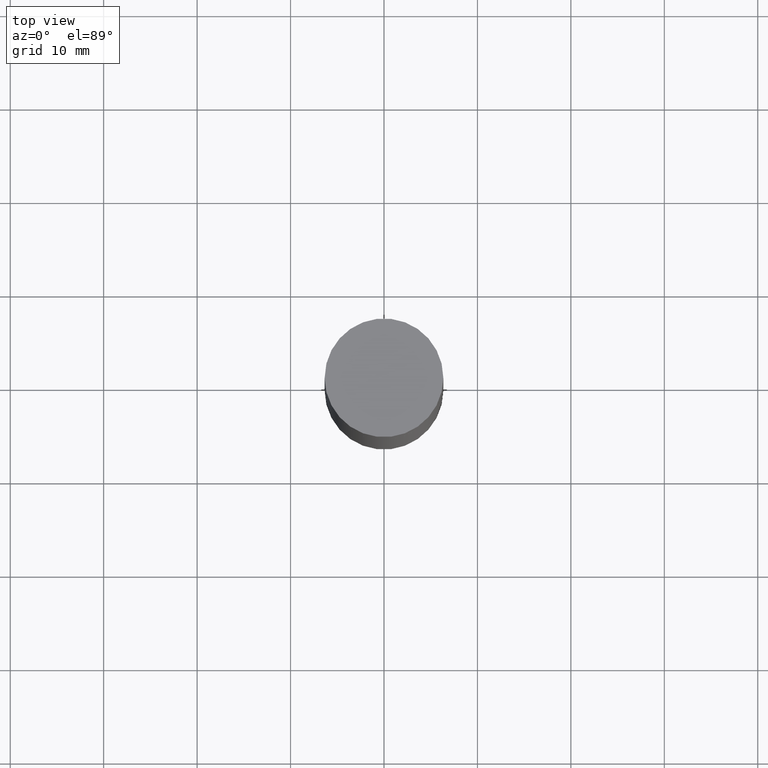
[diagram: clean part render]
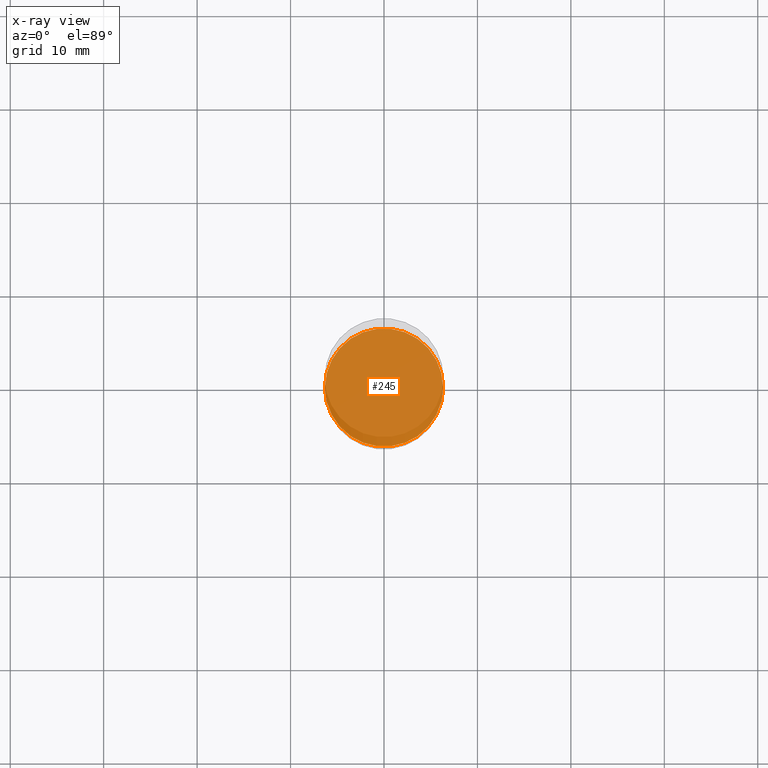
[diagram: x-ray — body ghosted, one internal face saturated and labeled with its STEP entity id]
A machine part, top view, then the same camera in x-ray: the body is ghosted and one INTERNAL B-rep face — a face not visible from any outside direction — is saturated and labeled: STEP entity #245.
In plain terms, the highlighted planar face has unit normal (-0, 0, 1).
Its self-contained STEP definition (entity closure, byte-faithful):
#13 = VERTEX_POINT ( 'NONE', #672 ) ;
#27 = EDGE_CURVE ( 'NONE', #13, #433, #212, .T. ) ;
#39 = DIRECTION ( 'NONE',  ( -2.445468806185136597E-29, 3.491481338843145583E-15, 1.000000000000000000 ) ) ;
#46 = CARTESIAN_POINT ( 'NONE',  ( 5.807988414689700538E-29, -8.292268179752471696E-15, -2.375000000000000000 ) ) ;
#54 = DIRECTION ( 'NONE',  ( 1.000000000000000000, -6.982962677686269866E-15, 0.000000000000000000 ) ) ;
#67 = DIRECTION ( 'NONE',  ( -2.438088387897960049E-29, 3.491481338843145188E-15, 1.000000000000000000 ) ) ;
#72 = AXIS2_PLACEMENT_3D ( 'NONE', #327, #181, #483 ) ;
#122 = PLANE ( 'NONE',  #426 ) ;
#126 = CARTESIAN_POINT ( 'NONE',  ( 5.807988414689700538E-29, -8.292268179752471696E-15, -2.375000000000000000 ) ) ;
#173 = EDGE_CURVE ( 'NONE', #433, #13, #643, .T. ) ;
#181 = DIRECTION ( 'NONE',  ( -2.445468806185136597E-29, 3.491481338843145583E-15, 1.000000000000000000 ) ) ;
#212 = CIRCLE ( 'NONE', #262, 0.2489999999999999991 ) ;
#245 = ADVANCED_FACE ( 'NONE', ( #639 ), #122, .F. ) ;
#262 = AXIS2_PLACEMENT_3D ( 'NONE', #46, #39, #54 ) ;
#274 = DIRECTION ( 'NONE',  ( 1.000000000000000000, -6.982962677686265922E-15, 4.876176775795935793E-29 ) ) ;
#327 = CARTESIAN_POINT ( 'NONE',  ( 5.807988414689700538E-29, -8.292268179752471696E-15, -2.375000000000000000 ) ) ;
#367 = EDGE_LOOP ( 'NONE', ( #504, #648 ) ) ;
#426 = AXIS2_PLACEMENT_3D ( 'NONE', #126, #67, #274 ) ;
#433 = VERTEX_POINT ( 'NONE', #624 ) ;
#483 = DIRECTION ( 'NONE',  ( 1.000000000000000000, -6.982962677686269866E-15, 0.000000000000000000 ) ) ;
#504 = ORIENTED_EDGE ( 'NONE', *, *, #27, .F. ) ;
#624 = CARTESIAN_POINT ( 'NONE',  ( -0.2489999999999999991, -6.517718313361599048E-15, -2.375000000000000000 ) ) ;
#639 = FACE_OUTER_BOUND ( 'NONE', #367, .T. ) ;
#643 = CIRCLE ( 'NONE', #72, 0.2489999999999999991 ) ;
#648 = ORIENTED_EDGE ( 'NONE', *, *, #173, .F. ) ;
#672 = CARTESIAN_POINT ( 'NONE',  ( 0.2489999999999999991, -1.003102588649635236E-14, -2.375000000000000000 ) ) ;